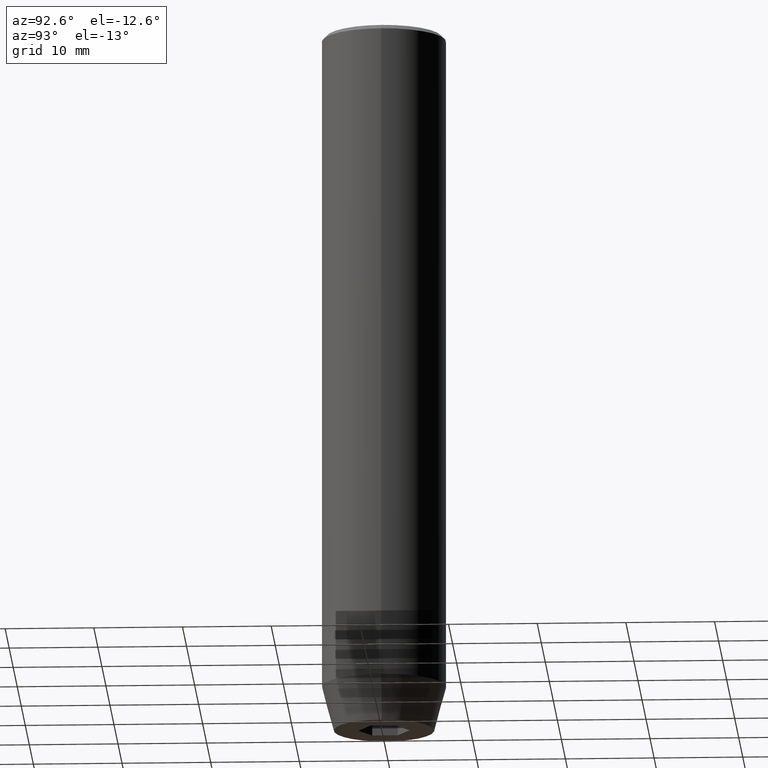
[diagram: clean part render]
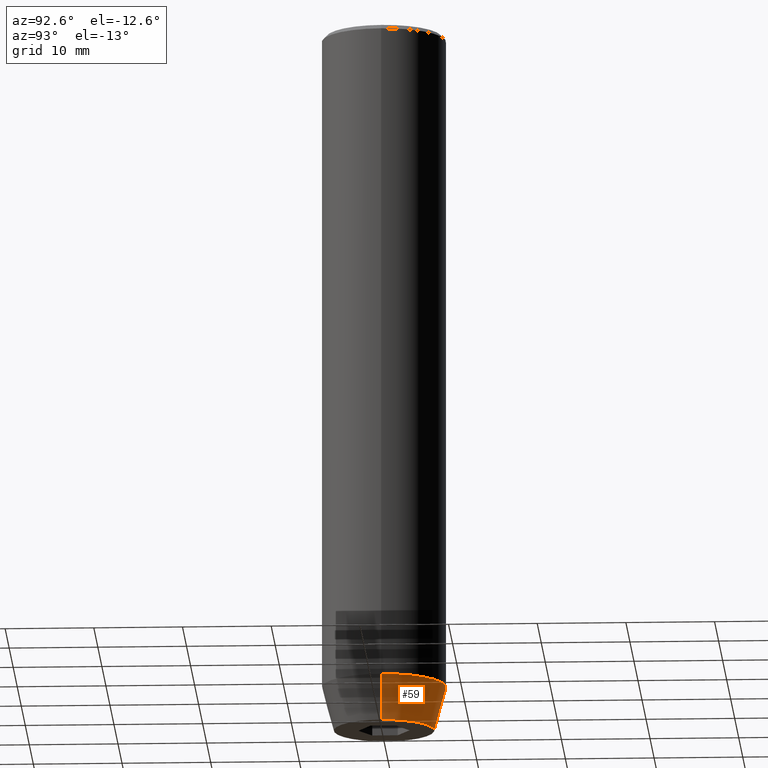
[diagram: same view with one face highlighted and labeled with its STEP entity id]
A machine part, auxiliary view. The second image highlights one B-rep face of the part: STEP entity #59.
In plain terms, the highlighted conical surface has half-angle 15 deg.
Its self-contained STEP definition (entity closure, byte-faithful):
#21 = VERTEX_POINT ( 'NONE', #256 ) ;
#23 = ORIENTED_EDGE ( 'NONE', *, *, #439, .F. ) ;
#28 = FACE_OUTER_BOUND ( 'NONE', #153, .T. ) ;
#34 = DIRECTION ( 'NONE',  ( 1.000000000000000000, 0.000000000000000000, 0.000000000000000000 ) ) ;
#41 = CARTESIAN_POINT ( 'NONE',  ( -7.000000000000000000, 8.572527594031473190E-16, -75.00000000000001421 ) ) ;
#48 = CARTESIAN_POINT ( 'NONE',  ( 7.000000000000000000, 0.000000000000000000, -75.00000000000001421 ) ) ;
#59 = ADVANCED_FACE ( 'NONE', ( #28 ), #517, .T. ) ;
#66 = VERTEX_POINT ( 'NONE', #386 ) ;
#104 = DIRECTION ( 'NONE',  ( 1.000000000000000000, 0.000000000000000000, 0.000000000000000000 ) ) ;
#112 = DIRECTION ( 'NONE',  ( -0.000000000000000000, -0.000000000000000000, 1.000000000000000000 ) ) ;
#115 = CARTESIAN_POINT ( 'NONE',  ( 7.000000000000000000, 0.000000000000000000, -75.00000000000001421 ) ) ;
#136 = DIRECTION ( 'NONE',  ( -0.2588190451025205729, 3.169619151431761860E-17, 0.9659258262890683122 ) ) ;
#144 = DIRECTION ( 'NONE',  ( -0.000000000000000000, -0.000000000000000000, 1.000000000000000000 ) ) ;
#153 = EDGE_LOOP ( 'NONE', ( #437, #563, #495, #23 ) ) ;
#193 = DIRECTION ( 'NONE',  ( 0.2588190451025205729, 0.000000000000000000, 0.9659258262890683122 ) ) ;
#212 = VECTOR ( 'NONE', #136, 1000.000000000000114 ) ;
#221 = CARTESIAN_POINT ( 'NONE',  ( -7.000000000000000000, 8.572527594031473190E-16, -75.00000000000001421 ) ) ;
#256 = CARTESIAN_POINT ( 'NONE',  ( 5.660254037844386410, 0.000000000000000000, -80.00000000000001421 ) ) ;
#257 = AXIS2_PLACEMENT_3D ( 'NONE', #267, #144, #104 ) ;
#267 = CARTESIAN_POINT ( 'NONE',  ( 0.000000000000000000, 0.000000000000000000, -80.00000000000001421 ) ) ;
#282 = LINE ( 'NONE', #115, #397 ) ;
#289 = AXIS2_PLACEMENT_3D ( 'NONE', #297, #441, #34 ) ;
#297 = CARTESIAN_POINT ( 'NONE',  ( 0.000000000000000000, 0.000000000000000000, -75.00000000000001421 ) ) ;
#309 = CIRCLE ( 'NONE', #257, 5.660254037844386410 ) ;
#316 = VERTEX_POINT ( 'NONE', #41 ) ;
#322 = AXIS2_PLACEMENT_3D ( 'NONE', #377, #112, #519 ) ;
#377 = CARTESIAN_POINT ( 'NONE',  ( 0.000000000000000000, 0.000000000000000000, -75.00000000000001421 ) ) ;
#386 = CARTESIAN_POINT ( 'NONE',  ( -5.660254037844386410, 7.752169791919240742E-16, -80.00000000000001421 ) ) ;
#397 = VECTOR ( 'NONE', #193, 1000.000000000000114 ) ;
#413 = EDGE_CURVE ( 'NONE', #555, #316, #496, .T. ) ;
#437 = ORIENTED_EDGE ( 'NONE', *, *, #544, .T. ) ;
#439 = EDGE_CURVE ( 'NONE', #21, #555, #282, .T. ) ;
#441 = DIRECTION ( 'NONE',  ( -0.000000000000000000, -0.000000000000000000, 1.000000000000000000 ) ) ;
#495 = ORIENTED_EDGE ( 'NONE', *, *, #413, .F. ) ;
#496 = CIRCLE ( 'NONE', #322, 7.000000000000000000 ) ;
#507 = EDGE_CURVE ( 'NONE', #66, #316, #547, .T. ) ;
#517 = CONICAL_SURFACE ( 'NONE', #289, 7.000000000000000000, 0.2617993877991492413 ) ;
#519 = DIRECTION ( 'NONE',  ( 1.000000000000000000, 0.000000000000000000, 0.000000000000000000 ) ) ;
#544 = EDGE_CURVE ( 'NONE', #21, #66, #309, .T. ) ;
#547 = LINE ( 'NONE', #221, #212 ) ;
#555 = VERTEX_POINT ( 'NONE', #48 ) ;
#563 = ORIENTED_EDGE ( 'NONE', *, *, #507, .T. ) ;